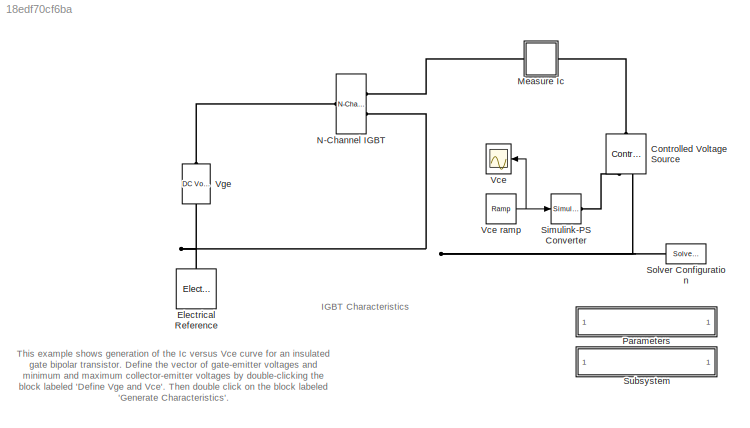
MODEL slx_18edf70cf6ba
KIND model
CONFIG PreLoadFcn = Vge = 10;\nVce_min = 0;\nVce_max = 5;\nt_sim = 1;
BLOCK [Reference] Controlled Voltage Source  REF=fl_lib/Electrical/Electrical Sources/Controlled Voltage
Source
  ClassName = controlled_voltage_source
  ComponentPath = foundation.electrical.sources.controlled_voltage
  ComponentVariantNames = controlled_voltage
  ComponentVariants = foundation.electrical.sources.controlled_voltage
  Ports = [0, 0, 0, 0, 0, 1, 2]
  SchemaVersion = 1
  SourceBlock = fl_lib/Electrical/Electrical Sources/Controlled Voltage\nSource
  SourceFile = foundation.electrical.sources.controlled_voltage
  SourceType = Controlled Voltage\nSource
BLOCK [Reference] Electrical Reference  REF=fl_lib/Electrical/Electrical Elements/Electrical Reference
  ClassName = reference_electrical
  ComponentPath = foundation.electrical.elements.reference
  ComponentVariantNames = reference
  ComponentVariants = foundation.electrical.elements.reference
  Ports = [0, 0, 0, 0, 0, 1]
  SchemaVersion = 1
  SourceBlock = fl_lib/Electrical/Electrical Elements/Electrical Reference
  SourceFile = foundation.electrical.elements.reference
  SourceType = Electrical Reference
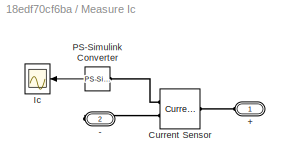
BLOCK [SubSystem] Measure Ic
  Ports = [0, 0, 0, 0, 0, 1, 1]
  RequestExecContextInheritance = off
BLOCK [PMIOPort] Measure Ic/+
  Port = 1
  Side = Left
BLOCK [PMIOPort] Measure Ic/-
  Port = 2
  Side = Right
BLOCK [Reference] Measure Ic/Current Sensor  REF=fl_lib/Electrical/Electrical Sensors/Current Sensor
  ClassName = sensor_current
  ComponentPath = foundation.electrical.sensors.current
  ComponentVariantNames = current
  ComponentVariants = foundation.electrical.sensors.current
  Ports = [0, 0, 0, 0, 0, 1, 2]
  SchemaVersion = 1
  SourceBlock = fl_lib/Electrical/Electrical Sensors/Current Sensor
  SourceFile = foundation.electrical.sensors.current
  SourceType = Current Sensor
BLOCK [Scope] Measure Ic/Ic
  DataFormat = StructureWithTime
  Floating = off
  NumInputPorts = 1
  Ports = [1]
  SampleTime = 0
  SaveName = Ic
  SaveToWorkspace = on
  ShowLegends = off
  TimeRange = 1
  YMax = 800
  YMin = -200
BLOCK [Reference] Measure Ic/PS-Simulink Converter  REF=nesl_utility/PS-Simulink
Converter
  AffineConversion = off
  Frequencies = []
  LeftPortType = input
  PhysicalDomain = network_engine_domain
  Ports = [0, 1, 0, 0, 0, 1]
  PseudoPeriodic = off
  RightPortType = output
  SourceBlock = nesl_utility/PS-Simulink\nConverter
  SourceType = PS-Simulink\nConverter
  SubClassName = ps_output
  Unit = 1
BLOCK [Reference] N-Channel IGBT  REF=elec_lib/Semiconductor
Devices/N-Channel IGBT
  BEX = -1.5
  BEX_unit = 1
  BF = 50
  BF_unit = 1
  C_GC = 2.7
  C_GC_unit = nF
  C_GE = 23.7
  C_GE_unit = nF
  C_OX = 20
  C_OX_unit = nF
  C_ies = 26.4
  C_ies_unit = nF
  C_oes = 0
  C_oes_unit = nF
  C_param = 1
  C_param_unit = 1
  C_res = 2.7
  C_res_unit = nF
  ClassName = n_igbt
  ComponentPath = elec.semiconductors.n_igbt
  ComponentVariantNames = No thermal port, Show thermal port
  ComponentVariants = elec.semiconductors.n_igbt, elec.semiconductors.n_igbt_thermal
  EG = 1.11
  EG_unit = eV
  Ic_mat = [ -1.015e-5 1.35e-8 4.7135e-4 5.092e-4 5.105e-4 5.117500000000001e-4 5.1299e-4 5.1423e-4 5.1548e-4 5.1672e-4; -9.986899999999999e-6 1.35e-8 4.7135e-4 5.092e-4 5.105e-4 5.117500000000001e-4 5.1299e-4 5.1423e-4 5.1548e-4 5.1672e-4; -9.955e-6 1.35e-8 0.0065225 3.3324 48.154 93.661 105.52 105.72 105.93 106.14; -9.955e-6 1.35e-8 0.0065235 3.5783 70.264 166.33 252.4 317.67 353.38 357.39; -9.955e-6 1.35e...<+347ch>
  Ic_mat_unit = A
  Ice_sat = 400
  Ice_sat_unit = A
  Ices = 2
  Ices_T2 = 100
  Ices_T2_unit = mA
  Ices_unit = mA
  Ports = [0, 0, 0, 0, 0, 1, 2]
  RC = 0.001
  RC_unit = Ohm
  RE = 0.001
  RE_unit = Ohm
  Rth = [ 0 10 ]
  Rth_unit = K/W
  SchemaVersion = 1
  SourceBlock = elec_lib/Semiconductor\nDevices/N-Channel IGBT
  SourceFile = elec.semiconductors.n_igbt
  SourceType = N-Channel IGBT
  TF = 0
  TF_unit = us
  T_param = 1
  T_param_unit = 1
  Tdevice = 125
  Tdevice_unit = C
  Tmeas = 25
  Tmeas2 = 125
  Tmeas2_unit = C
  Tmeas_unit = C
  VAF = 200
  VAF_unit = V
  V_C_OX = -5
  V_C_OX_unit = V
  Vce_sat = 2.6
  Vce_sat_T2 = 3
  Vce_sat_T2_unit = V
  Vce_sat_unit = V
  Vce_vec = [ -1 0 0.5 1 1.5 2 2.5 3 3.5 4 ]
  Vce_vec_unit = V
  Vces = 600
  Vces_unit = V
  Vge_sat = 10
  Vge_sat_unit = V
  Vge_vec = [ -2 6 7 8 10 12 15 20 ]
  Vge_vec_unit = V
  Vth = 6
  Vth_unit = V
  XTI = 3
  XTI_unit = 1
  charge_linearity_param = 1
  charge_linearity_param_unit = 1
  ec = 3
  ec_unit = 1
  model_type = 1
  model_type_unit = 1
  thermal_mass = [ 0 1 ]
  thermal_mass_initial_temperatures = [ 25 25 ]
  thermal_mass_initial_temperatures_unit = C
  thermal_mass_parameterization = 1
  thermal_mass_parameterization_unit = 1
  thermal_mass_unit = J/K
  thermal_time_constant = [ 0 10 ]
  thermal_time_constant_unit = s
BLOCK [SubSystem] Parameters
  Ports = []
  RequestExecContextInheritance = off
BLOCK [Reference] Simulink-PS Converter  REF=nesl_utility/Simulink-PS
Converter
  AffineConversion = off
  Frequencies = []
  InputFilterTimeConstant = .001
  InputFiltering = off
  LeftPortType = input
  NoiseDistribution = none
  NoiseParameters = []
  PhysicalDomain = network_engine_domain
  Ports = [1, 0, 0, 0, 0, 0, 1]
  PseudoPeriodic = off
  RightPortType = output
  SimscapeFilterOrder = 1
  SourceBlock = nesl_utility/Simulink-PS\nConverter
  SourceType = Simulink-PS\nConverter
  SubClassName = ps_input
  UdotUserProvided = 0
  Unit = 1
BLOCK [Reference] Solver Configuration  REF=nesl_utility/Solver
Configuration
  AbsTol = 1e-06
  Accelerate = off
  AutomaticFiltering = on
  DelaysMemoryBudget = 1024
  DoDC = on
  DoFixedCost = off
  EnableSwitchedLinearOptims = on
  FilteringTimeConstant = 0.001
  FrequencyDomain = off
  Harmonics = []
  LeftPortType = input
  LinearAlgebra = Sparse
  LocalSolverChoice = NE_BACKWARD_EULER_ADVANCER
  LocalSolverSampleTime = .001
  MaxModeIter = 2
  MaxNonlinIter = 3
  MinStep = 1e-09
  PhysicalDomain = network_engine_domain
  Ports = [0, 0, 0, 0, 0, 0, 1]
  Profile = off
  RelTol = 0.001
  ResidualTolerance = 1e-9
  RightPortType = generic
  SimulateNoise = off
  SourceBlock = nesl_utility/Solver\nConfiguration
  SourceType = Solver\nConfiguration
  SubClassName = solver
  ToWorkspace = off
  Tones = []
  UseCCode = off
  UseLocalSampling = off
  UseLocalSolver = off
BLOCK [SubSystem] Subsystem
  OpenFcn = elec_igbt_callback
  Ports = []
  RequestExecContextInheritance = off
BLOCK [Scope] Vce
  DataFormat = StructureWithTime
  Floating = off
  NumInputPorts = 1
  Ports = [1]
  SampleTime = 0
  SaveName = Vce
  SaveToWorkspace = on
  ShowLegends = off
  TimeRange = 1
  YMin = 0
BLOCK [Reference] Vce ramp  REF=simulink/Sources/Ramp
  Ports = [0, 1]
  SourceBlock = simulink/Sources/Ramp
  SourceType = Ramp
  VectorParams1D = on
  X0 = Vce_min
  slope = (Vce_max-Vce_min)/t_sim
  start = 0
BLOCK [Reference] Vge  REF=fl_lib/Electrical/Electrical Sources/DC Voltage Source
  ClassName = dc_voltage
  ComponentPath = foundation.electrical.sources.dc_voltage
  ComponentVariantNames = dc_voltage
  ComponentVariants = foundation.electrical.sources.dc_voltage
  Ports = [0, 0, 0, 0, 0, 1, 1]
  SchemaVersion = 1
  SourceBlock = fl_lib/Electrical/Electrical Sources/DC Voltage Source
  SourceFile = foundation.electrical.sources.dc_voltage
  SourceType = DC Voltage Source
  v0 = Vge
  v0_unit = V
ANNOTATION (root): IGBT Characteristics
ANNOTATION (root): This example shows generation of the Ic versus Vce curve for an insulated gate bipolar transistor. Define the vector of gate-emitter voltages and minimum and maximum collector-emitter voltages by double-clicking the block labeled 'Define Vge and Vce'. Then double click on the block labeled 'Generate Characteristics'.
LINE Measure Ic/PS-Simulink Converter:1 -> Measure Ic/Ic:1
NET Vce ramp:1 -> Simulink-PS Converter:1, Vce:1
PLINE Controlled Voltage Source:LConn1 -- Measure Ic:LConn1
PLINE Controlled Voltage Source:RConn1 -- Simulink-PS Converter:RConn1
PNET net1: Controlled Voltage Source:RConn2 -- Electrical Reference:LConn1 -- N-Channel IGBT:RConn2 -- Solver Configuration:RConn1 -- Vge:RConn1
PLINE Measure Ic/+:RConn1 -- Measure Ic/Current Sensor:LConn1
PLINE Measure Ic/-:RConn1 -- Measure Ic/Current Sensor:RConn2
PLINE Measure Ic/Current Sensor:RConn1 -- Measure Ic/PS-Simulink Converter:LConn1
PLINE Measure Ic:RConn1 -- N-Channel IGBT:RConn1
PLINE N-Channel IGBT:LConn1 -- Vge:LConn1
note: NET lines group one-source signal fan-out (src -> all destinations, sorted); 1:1 wires keep LINE; PNET lines group multi-terminal physical nets as a canonical sorted terminal list (undirected conserving connections); 2-terminal nets keep the pairwise PLINE form
